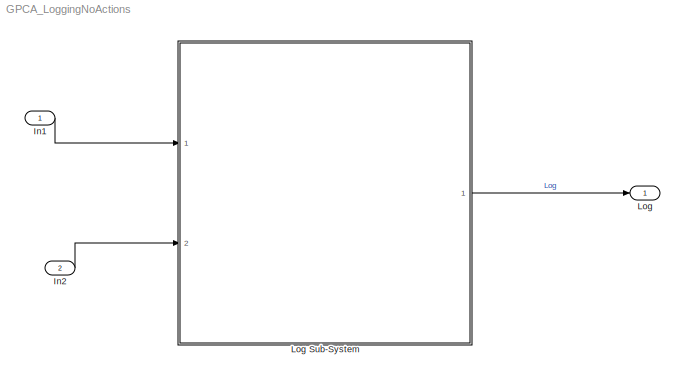
MODEL GPCA_LoggingNoActions
KIND model
BLOCK [Inport] In1
  IconDisplay = Port number
  OutDataTypeStr = boolean
  SID = 37
BLOCK [Inport] In2
  IconDisplay = Port number
  OutDataTypeStr = boolean
  Port = 2
  SID = 38
BLOCK [Outport] Log
  IconDisplay = Port number
  SID = 8
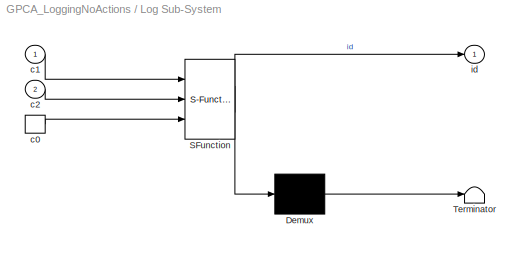
BLOCK [SubSystem] Log Sub-System
  ErrorFcn = Stateflow.Translate.translate
  PermitHierarchicalResolution = ExplicitOnly
  Ports = [2, 1, 0, 1]
  RequestExecContextInheritance = off
  SFBlockType = Chart
  SID = 7
  TreatAsAtomicUnit = on
  Variant = off
BLOCK [Demux] Log Sub-System/ Demux 
  Outputs = 1
  Ports = [1, 1]
  SID = 7::348
BLOCK [S-Function] Log Sub-System/ SFunction 
  EnableBusSupport = on
  FunctionName = sf_sfun
  PortCounts = [3 2]
  Ports = [3, 2]
  SFcnIsStateOwnerBlock = off
  SFunctionDeploymentMode = off
  SID = 7::347
  Tag = Stateflow S-Function GPCA_LoggingNoActions 2
BLOCK [Terminator] Log Sub-System/ Terminator 
  SID = 7::349
BLOCK [TriggerPort] Log Sub-System/c0
  Ports = [0, 1]
  SID = 7::353
  ShowOutputPort = on
  StatesWhenEnabling = held
  VariantControl = (inherit)
BLOCK [Inport] Log Sub-System/c1
  IconDisplay = Port number
  SID = 7::350
BLOCK [Inport] Log Sub-System/c2
  IconDisplay = Port number
  Port = 2
  SID = 7::351
BLOCK [Outport] Log Sub-System/id
  IconDisplay = Port number
  SID = 7::352
LINE In1:1 -> Log Sub-System:1
LINE In2:1 -> Log Sub-System:2
LINE Log Sub-System/ Demux :1 -> Log Sub-System/ Terminator :1
LINE Log Sub-System/ SFunction :1 -> Log Sub-System/ Demux :1
LINE Log Sub-System/ SFunction :2 -> Log Sub-System/id:1
LINE Log Sub-System/c0:1 -> Log Sub-System/ SFunction :3
LINE Log Sub-System/c1:1 -> Log Sub-System/ SFunction :1
LINE Log Sub-System/c2:1 -> Log Sub-System/ SFunction :2
LINE Log Sub-System:1 -> Log:1
CHART Log Sub-System states=2 transitions=4
  STATE_LABEL 'NOT_ON\\nentry: id = 1;'
  STATE_LABEL 'LOG\\nentry: id=2;\\n'
